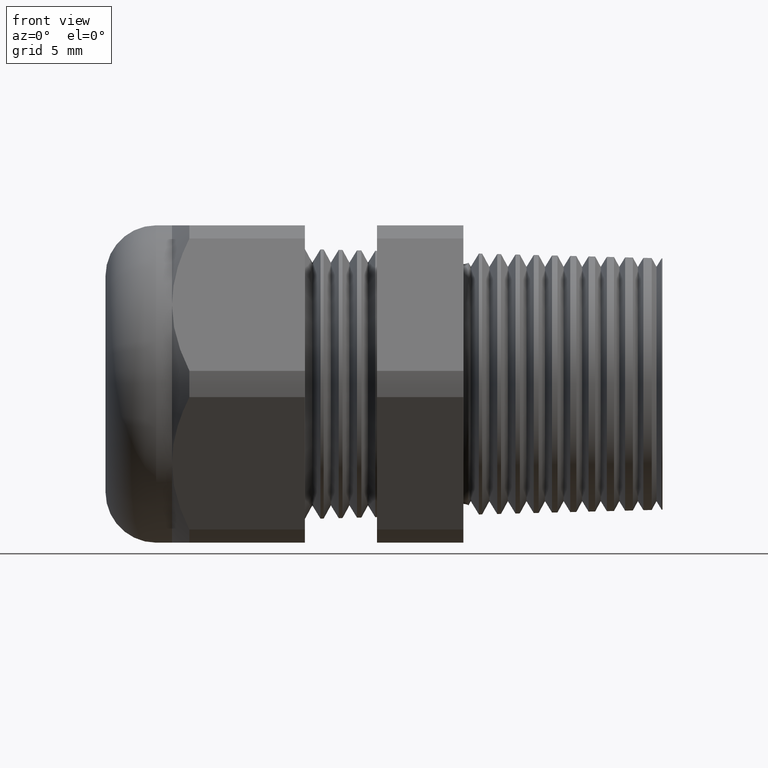
[diagram: clean part render]
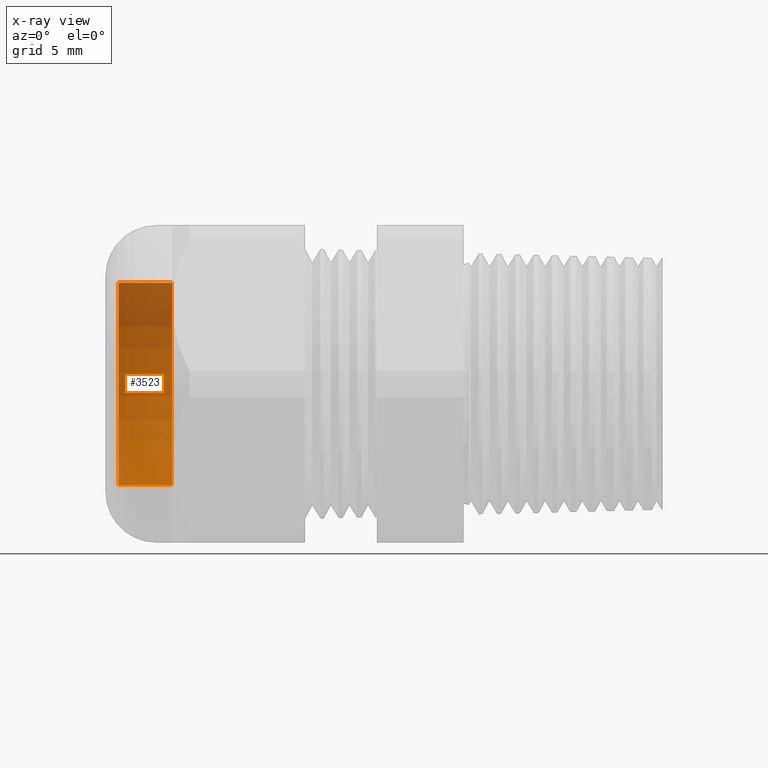
[diagram: x-ray — body ghosted, one internal face saturated and labeled with its STEP entity id]
A machine part, front view, then the same camera in x-ray: the body is ghosted and one INTERNAL B-rep face — a face not visible from any outside direction — is saturated and labeled: STEP entity #3523.
In plain terms, the highlighted cylindrical surface (partial cylindrical patch) has radius 7.62 mm, axis along (1, 0, 0).
Its self-contained STEP definition (entity closure, byte-faithful):
#1941 = CARTESIAN_POINT ( 'NONE',  ( -1.330999999999999700, 3.673940397442059500E-017, 0.2999999999999999900 ) ) ;
#1987 = DIRECTION ( 'NONE',  ( 1.000000000000000000, 0.0000000000000000000, 0.0000000000000000000 ) ) ;
#1988 = VECTOR ( 'NONE', #1987, 39.37007874015748100 ) ;
#1989 = CARTESIAN_POINT ( 'NONE',  ( 0.0000000000000000000, 3.673940397442059500E-017, 0.2999999999999999900 ) ) ;
#1990 = LINE ( 'NONE', #1989, #1988 ) ;
#2118 = CARTESIAN_POINT ( 'NONE',  ( -1.173149606299212600, 3.673940397442060700E-017, 0.3000000000000001000 ) ) ;
#2119 = DIRECTION ( 'NONE',  ( 1.000000000000000000, 0.0000000000000000000, 0.0000000000000000000 ) ) ;
#2120 = VECTOR ( 'NONE', #2119, 39.37007874015748100 ) ;
#2121 = CARTESIAN_POINT ( 'NONE',  ( 0.0000000000000000000, 0.0000000000000000000, -0.2999999999999999900 ) ) ;
#2122 = LINE ( 'NONE', #2121, #2120 ) ;
#2141 = CARTESIAN_POINT ( 'NONE',  ( -1.173149606299212600, 0.0000000000000000000, -0.3000000000000000400 ) ) ;
#2178 = DIRECTION ( 'NONE',  ( 0.0000000000000000000, 0.0000000000000000000, -1.000000000000000000 ) ) ;
#2179 = DIRECTION ( 'NONE',  ( 1.000000000000000000, 0.0000000000000000000, 0.0000000000000000000 ) ) ;
#2180 = CARTESIAN_POINT ( 'NONE',  ( -1.173149606299212600, 0.0000000000000000000, 0.0000000000000000000 ) ) ;
#2181 = AXIS2_PLACEMENT_3D ( 'NONE', #2180, #2179, #2178 ) ;
#2182 = CIRCLE ( 'NONE', #2181, 0.3000000000000000400 ) ;
#2187 = DIRECTION ( 'NONE',  ( 0.0000000000000000000, 0.0000000000000000000, -1.000000000000000000 ) ) ;
#2188 = DIRECTION ( 'NONE',  ( 1.000000000000000000, 0.0000000000000000000, 0.0000000000000000000 ) ) ;
#2189 = CARTESIAN_POINT ( 'NONE',  ( 0.0000000000000000000, 0.0000000000000000000, 0.0000000000000000000 ) ) ;
#2190 = AXIS2_PLACEMENT_3D ( 'NONE', #2189, #2188, #2187 ) ;
#2191 = CYLINDRICAL_SURFACE ( 'NONE', #2190, 0.2999999999999999900 ) ;
#2192 = FACE_OUTER_BOUND ( 'NONE', #3521, .T. ) ;
#2236 = CARTESIAN_POINT ( 'NONE',  ( -1.330999999999999700, 0.0000000000000000000, -0.2999999999999999900 ) ) ;
#2237 = DIRECTION ( 'NONE',  ( 0.0000000000000000000, 0.0000000000000000000, -1.000000000000000000 ) ) ;
#2238 = DIRECTION ( 'NONE',  ( 1.000000000000000000, 0.0000000000000000000, 0.0000000000000000000 ) ) ;
#2239 = CARTESIAN_POINT ( 'NONE',  ( -1.330999999999999700, 0.0000000000000000000, 0.0000000000000000000 ) ) ;
#2240 = AXIS2_PLACEMENT_3D ( 'NONE', #2239, #2238, #2237 ) ;
#2241 = CIRCLE ( 'NONE', #2240, 0.2999999999999999900 ) ;
#3393 = VERTEX_POINT ( 'NONE', #1941 ) ;
#3398 = ORIENTED_EDGE ( 'NONE', *, *, #3401, .T. ) ;
#3401 = EDGE_CURVE ( 'NONE', #3393, #3493, #1990, .T. ) ;
#3402 = ORIENTED_EDGE ( 'NONE', *, *, #3529, .T. ) ;
#3480 = VERTEX_POINT ( 'NONE', #2141 ) ;
#3490 = EDGE_CURVE ( 'NONE', #3530, #3480, #2122, .T. ) ;
#3492 = ORIENTED_EDGE ( 'NONE', *, *, #3490, .F. ) ;
#3493 = VERTEX_POINT ( 'NONE', #2118 ) ;
#3494 = EDGE_CURVE ( 'NONE', #3480, #3493, #2182, .T. ) ;
#3496 = ORIENTED_EDGE ( 'NONE', *, *, #3494, .F. ) ;
#3521 = EDGE_LOOP ( 'NONE', ( #3402, #3398, #3496, #3492 ) ) ;
#3523 = ADVANCED_FACE ( 'NONE', ( #2192 ), #2191, .T. ) ;
#3529 = EDGE_CURVE ( 'NONE', #3530, #3393, #2241, .T. ) ;
#3530 = VERTEX_POINT ( 'NONE', #2236 ) ;